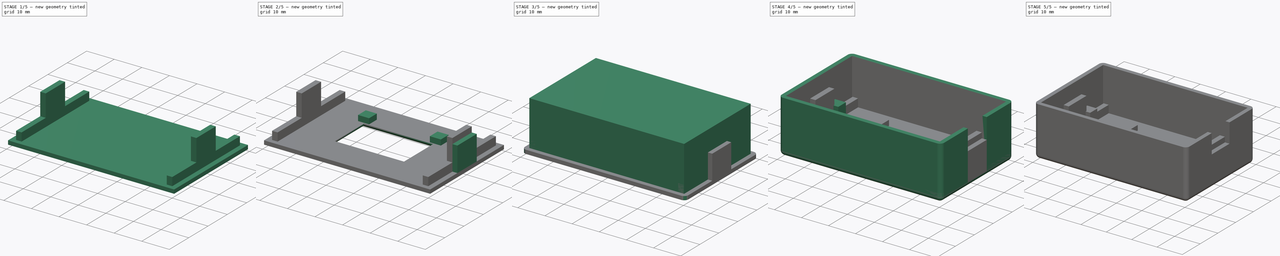
[diagram: build sequence overview — one tinted view per stage of 5, left to right]
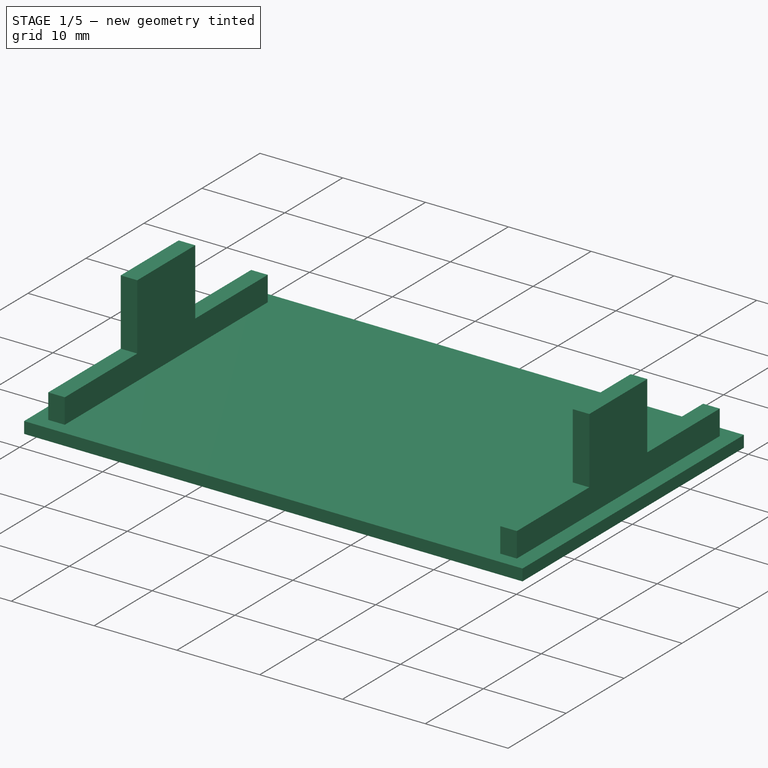
[diagram: stage 1 of 5 — iso view after this stage's code; geometry added in this stage tinted green]
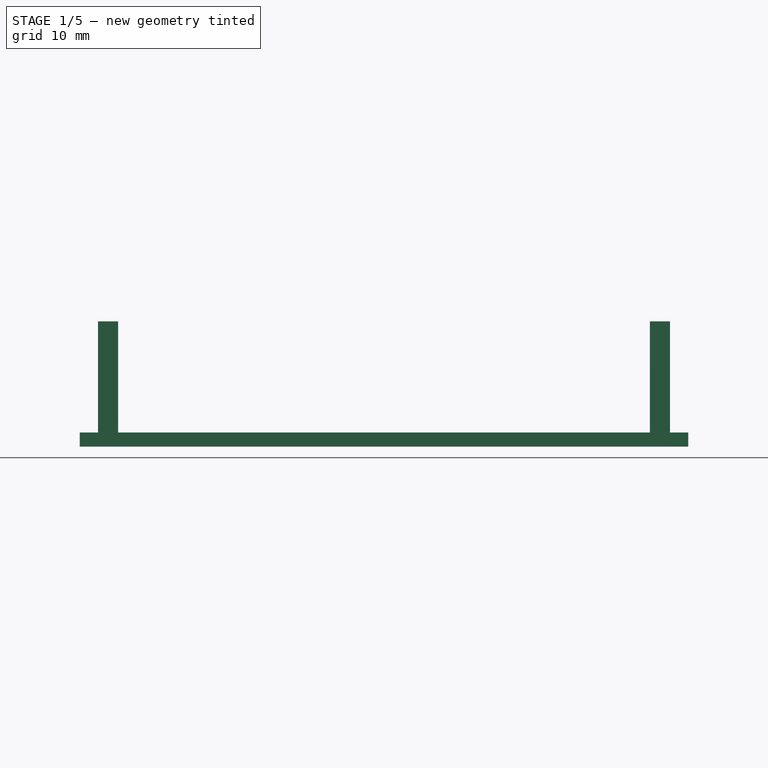
[diagram: stage 1 of 5 — front view after this stage's code; geometry added in this stage tinted green]
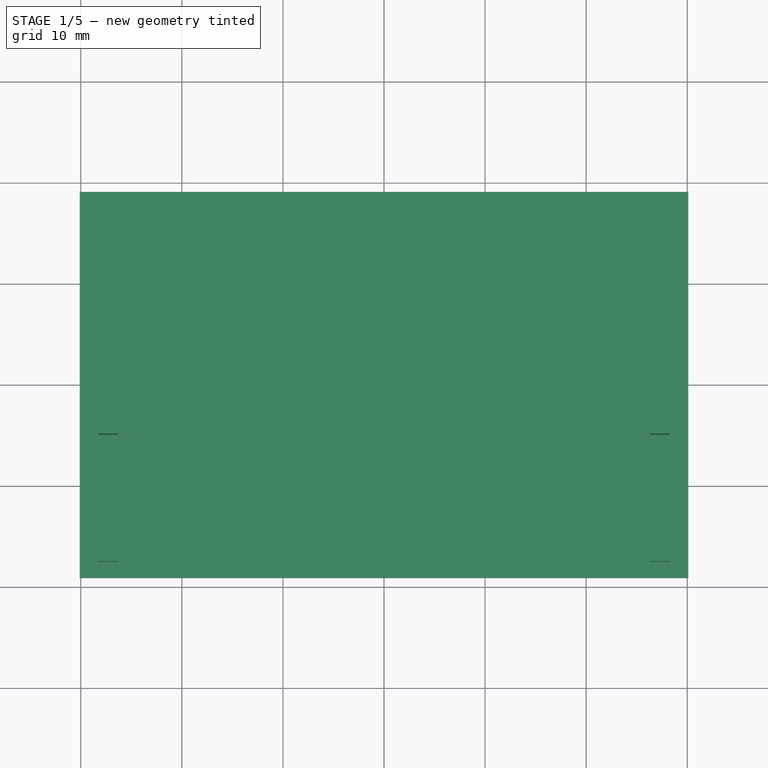
[diagram: stage 1 of 5 — top view after this stage's code; geometry added in this stage tinted green]
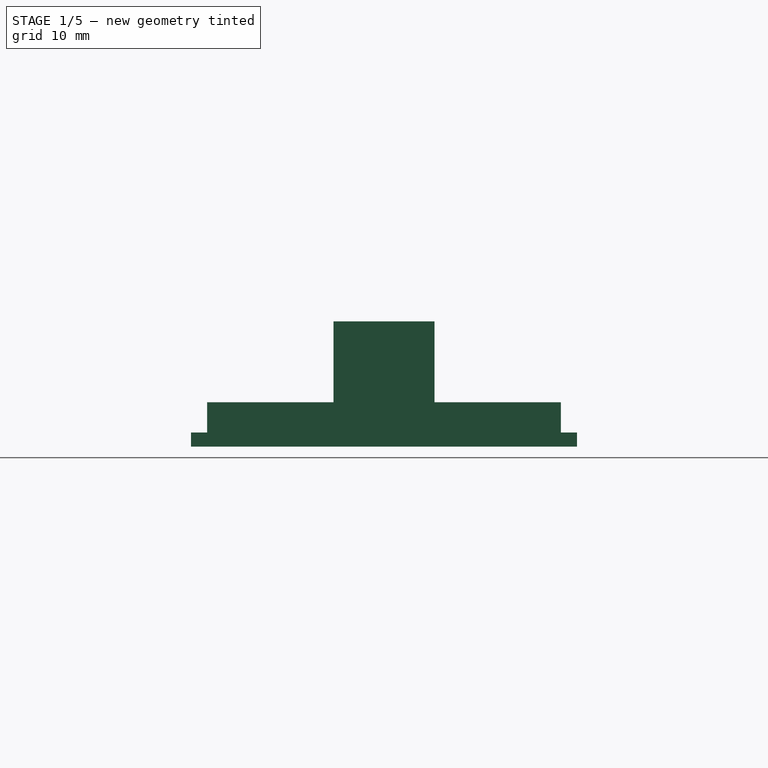
[diagram: stage 1 of 5 — right view after this stage's code; geometry added in this stage tinted green]
FCSTD DOCUMENT  (FreeCAD 0.18.3R)
Label: CajaTermometro
License: All rights reserved
LicenseURL: http://en.wikipedia.org/wiki/All_rights_reserved
objects: Sketcher::SketchObject×15, PartDesign::Pad×11, PartDesign::Mirrored×6, PartDesign::Pocket×3, PartDesign::Body×2, PartDesign::Thickness×1, PartDesign::Chamfer×1, PartDesign::Hole×1, PartDesign::Fillet×1
note: 56 computed .brp shape members not serialized (recipe doc carries the construction recipe); baked Part::Feature solids carry a one-line shape summary decoded from their .brp

FEATURE [Sketcher::SketchObject] Sketch008
  MapMode = 5
  Support = -> [XY_Plane001]
  expr: Constraints[10] = Sketch.Constraints.ancho + 3.2mm
  expr: Constraints[9] = Sketch.Constraints.largo + 3.2mm
  sketch-geometry (4):
    g0: LineSegment StartX=-30.1 StartY=19.1 StartZ=0 EndX=30.1 EndY=19.1 EndZ=0
    g1: LineSegment StartX=30.1 StartY=19.1 StartZ=0 EndX=30.1 EndY=-19.1 EndZ=0
    g2: LineSegment StartX=30.1 StartY=-19.1 StartZ=0 EndX=-30.1 EndY=-19.1 EndZ=0
    g3: LineSegment StartX=-30.1 StartY=-19.1 StartZ=0 EndX=-30.1 EndY=19.1 EndZ=0
  constraints (11):
    c: Coincident(g0,g1)
    c: Coincident(g1,g2)
    c: Coincident(g2,g3)
    c: Coincident(g3,g0)
    c: Horizontal(g0)
    c: Horizontal(g2)
    c: Vertical(g1)
    c: Vertical(g3)
    c: Symmetric(g1,g0,g-1)
    c: DistanceX(g0,g0) = 60.2
    c: DistanceY(g3,g3) = 38.2
FEATURE [PartDesign::Pad] Pad005
  Length = 1.4
  Length2 = 100
  Profile = -> Sketch008
  Refine = true
  Type = 0
FEATURE [Sketcher::SketchObject] Sketch009
  ExternalGeometry = -> [Pad005]
  MapMode = 5
  Placement = pos=(0,0,1.4) rot=(0,0,1;0rad)
  Support = -> [Pad005]
  sketch-geometry (4):
    g0: LineSegment StartX=-28.3 StartY=17.5 StartZ=0 EndX=-26.3 EndY=17.5 EndZ=0
    g1: LineSegment StartX=-26.3 StartY=17.5 StartZ=0 EndX=-26.3 EndY=-17.5 EndZ=0
    g2: LineSegment StartX=-26.3 StartY=-17.5 StartZ=0 EndX=-28.3 EndY=-17.5 EndZ=0
    g3: LineSegment StartX=-28.3 StartY=-17.5 StartZ=0 EndX=-28.3 EndY=17.5 EndZ=0
  constraints (11):
    c: Coincident(g0,g1)
    c: Coincident(g1,g2)
    c: Coincident(g2,g3)
    c: Coincident(g3,g0)
    c: Horizontal(g0)
    c: Horizontal(g2)
    c: Vertical(g1)
    c: DistanceX(g0,g0) = 2
    c: DistanceY(g-3,g0) = -1.6
    c: DistanceX(g-3,g0) = 1.8
    c: Symmetric(g0,g2,g-1)
FEATURE [PartDesign::Pad] Pad006
  BaseFeature = -> Pad005
  Length = 3
  Length2 = 100
  Profile = -> Sketch009
  Refine = true
  Type = 0
FEATURE [PartDesign::Mirrored] Mirrored002
  BaseFeature = -> Pad006
  MirrorPlane = -> YZ_Plane001
  Originals = -> [Pad006]
  Refine = true
FEATURE [Sketcher::SketchObject] Sketch010
  ExternalGeometry = -> [Mirrored002]
  MapMode = 5
  Placement = pos=(0,0,4.4) rot=(0,0,1;0rad)
  Support = -> [Mirrored002]
  sketch-geometry (4):
    g0: LineSegment StartX=-28.3 StartY=5 StartZ=0 EndX=-26.3 EndY=5 EndZ=0
    g1: LineSegment StartX=-26.3 StartY=5 StartZ=0 EndX=-26.3 EndY=-5 EndZ=0
    g2: LineSegment StartX=-26.3 StartY=-5 StartZ=0 EndX=-28.3 EndY=-5 EndZ=0
    g3: LineSegment StartX=-28.3 StartY=-5 StartZ=0 EndX=-28.3 EndY=5 EndZ=0
  constraints (11):
    c: Coincident(g0,g1)
    c: Coincident(g1,g2)
    c: Coincident(g2,g3)
    c: Coincident(g3,g0)
    c: Horizontal(g0)
    c: Horizontal(g2)
    c: Vertical(g1)
    c: PointOnObject(g0,g-4)
    c: PointOnObject(g1,g-3)
    c: Symmetric(g2,g0,g-1)
    c: DistanceY(g1,g1) = 10
FEATURE [PartDesign::Pad] Pad007
  BaseFeature = -> Mirrored002
  Length = 8
  Length2 = 100
  Profile = -> Sketch010
  Refine = true
  Type = 0
FEATURE [PartDesign::Mirrored] Mirrored003
  BaseFeature = -> Pad007
  MirrorPlane = -> YZ_Plane001
  Originals = -> [Pad007]
  Refine = true
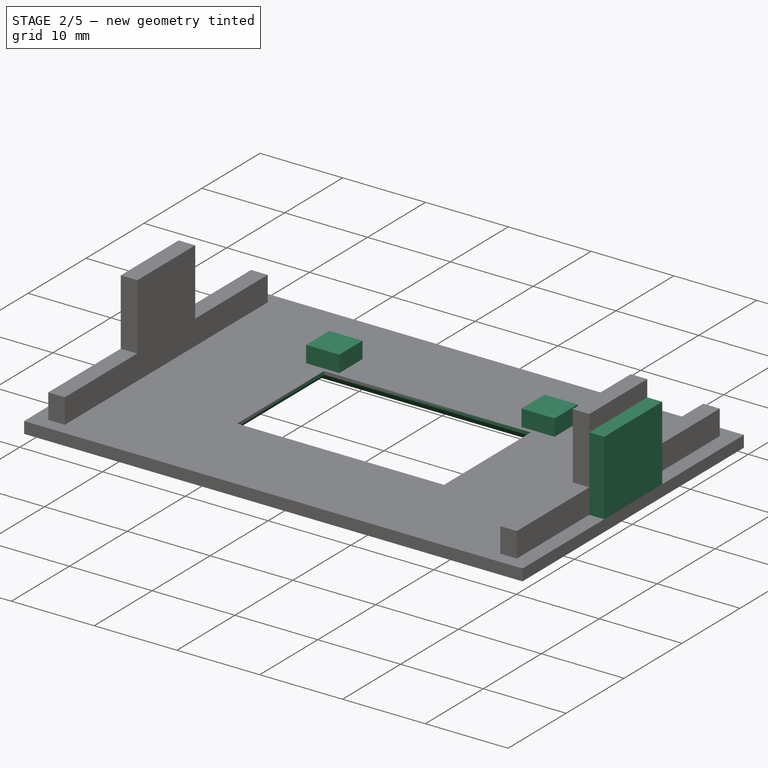
[diagram: stage 2 of 5 — iso view after this stage's code; geometry added in this stage tinted green]
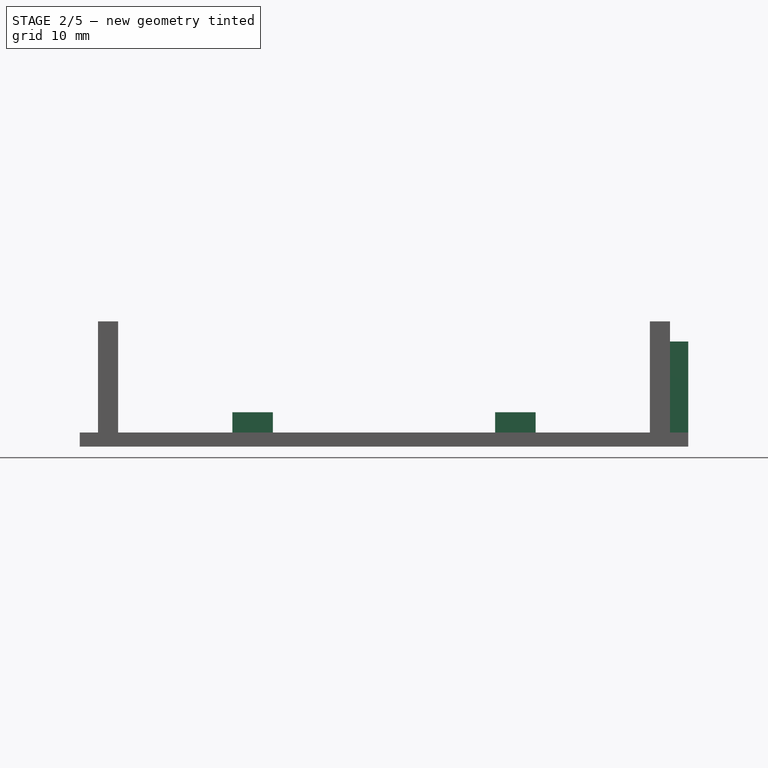
[diagram: stage 2 of 5 — front view after this stage's code; geometry added in this stage tinted green]
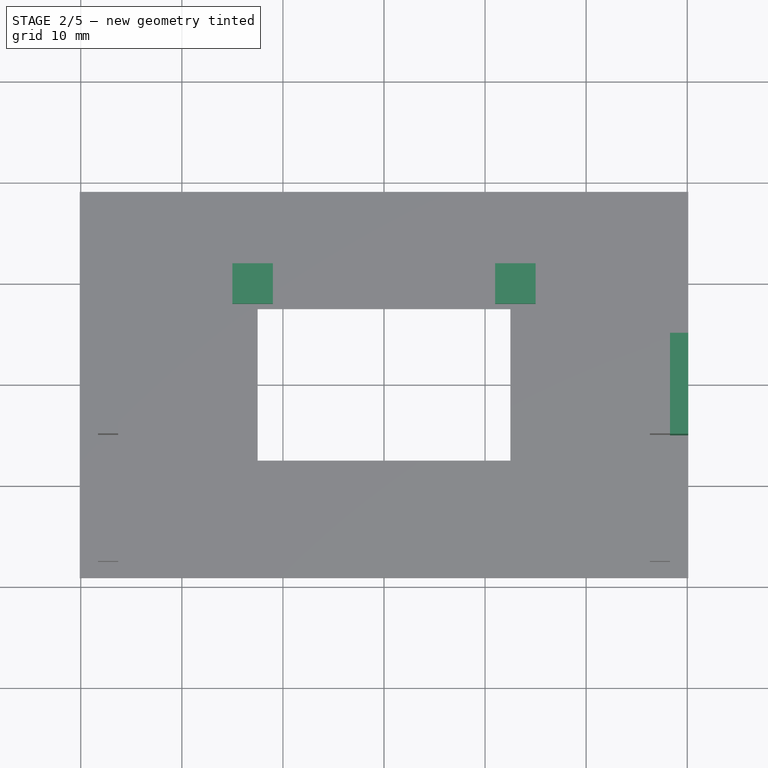
[diagram: stage 2 of 5 — top view after this stage's code; geometry added in this stage tinted green]
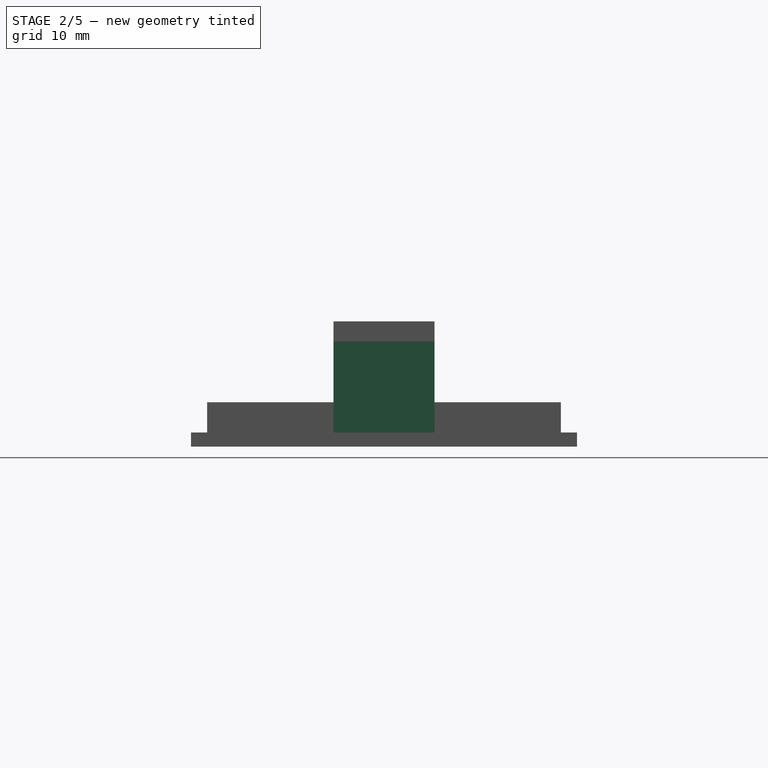
[diagram: stage 2 of 5 — right view after this stage's code; geometry added in this stage tinted green]
FEATURE [Sketcher::SketchObject] Sketch011
  ExternalGeometry = -> [Mirrored003]
  MapMode = 5
  Placement = pos=(28.3,-5.6e-15,6.8e-15) rot=(0.57735,0.57735,0.57735;2.0944rad)
  Support = -> [Mirrored003]
  sketch-geometry (4):
    g0: LineSegment StartX=-5 StartY=10.4 StartZ=0 EndX=5 EndY=10.4 EndZ=0
    g1: LineSegment StartX=5 StartY=10.4 StartZ=0 EndX=5 EndY=1.4 EndZ=0
    g2: LineSegment StartX=5 StartY=1.4 StartZ=0 EndX=-5 EndY=1.4 EndZ=0
    g3: LineSegment StartX=-5 StartY=1.4 StartZ=0 EndX=-5 EndY=10.4 EndZ=0
  constraints (11):
    c: Coincident(g0,g1)
    c: Coincident(g1,g2)
    c: Coincident(g2,g3)
    c: Coincident(g3,g0)
    c: Horizontal(g2)
    c: Vertical(g1)
    c: Vertical(g3)
    c: PointOnObject(g1,g-4)
    c: Symmetric(g0,g0,g-2)
    c: DistanceX(g0,g-3) = 0
    c: DistanceY(g0,g-3) = 2
FEATURE [PartDesign::Pad] Pad008
  BaseFeature = -> Mirrored003
  Length = 1.8
  Length2 = 100
  Profile = -> Sketch011
  Refine = true
  Type = 0
FEATURE [Sketcher::SketchObject] Sketch012
  MapMode = 5
  Placement = pos=(0,0,0) rot=(1,0,0;3.14159rad)
  Support = -> [Pad008]
  sketch-geometry (4):
    g0: LineSegment StartX=-12.5 StartY=7.5 StartZ=0 EndX=12.5 EndY=7.5 EndZ=0
    g1: LineSegment StartX=12.5 StartY=7.5 StartZ=0 EndX=12.5 EndY=-7.5 EndZ=0
    g2: LineSegment StartX=12.5 StartY=-7.5 StartZ=0 EndX=-12.5 EndY=-7.5 EndZ=0
    g3: LineSegment StartX=-12.5 StartY=-7.5 StartZ=0 EndX=-12.5 EndY=7.5 EndZ=0
  constraints (11):
    c: Coincident(g0,g1)
    c: Coincident(g1,g2)
    c: Coincident(g2,g3)
    c: Coincident(g3,g0)
    c: Horizontal(g0)
    c: Horizontal(g2)
    c: Vertical(g1)
    c: Vertical(g3)
    c: Symmetric(g1,g0,g-1)
    c: DistanceX(g0,g0) = 25
    c: DistanceY(g3,g3) = 15
FEATURE [PartDesign::Pocket] Pocket002
  BaseFeature = -> Pad008
  Length = 1
  Length2 = 100
  Profile = -> Sketch012
  Refine = true
  Type = 1
FEATURE [PartDesign::Chamfer] Chamfer
  Base = -> Pocket002 [Edge16,Edge19,Edge18,Edge17]
  BaseFeature = -> Pocket002
  Size = 1
FEATURE [Sketcher::SketchObject] Sketch013
  ExternalGeometry = -> [Chamfer]
  MapMode = 5
  Placement = pos=(0,0,1.4) rot=(0,0,1;0rad)
  Support = -> [Chamfer]
  sketch-geometry (4):
    g0: LineSegment StartX=11 StartY=12 StartZ=0 EndX=15 EndY=12 EndZ=0
    g1: LineSegment StartX=15 StartY=12 StartZ=0 EndX=15 EndY=8 EndZ=0
    g2: LineSegment StartX=15 StartY=8 StartZ=0 EndX=11 EndY=8 EndZ=0
    g3: LineSegment StartX=11 StartY=8 StartZ=0 EndX=11 EndY=12 EndZ=0
  constraints (12):
    c: Coincident(g0,g1)
    c: Coincident(g1,g2)
    c: Coincident(g2,g3)
    c: Coincident(g3,g0)
    c: Horizontal(g0)
    c: Horizontal(g2)
    c: Vertical(g1)
    c: Vertical(g3)
    c: Equal(g2,g1)
    c: DistanceX(g2,g2) = 4
    c: DistanceX(g1,g-4) = -2.5
    c: DistanceY(g-4,g1) = 0.5
FEATURE [PartDesign::Pad] Pad009
  BaseFeature = -> Chamfer
  Length = 2
  Length2 = 100
  Profile = -> Sketch013
  Refine = true
  Type = 0
FEATURE [PartDesign::Mirrored] Mirrored004
  BaseFeature = -> Pad009
  MirrorPlane = -> YZ_Plane001
  Originals = -> [Pad009]
  Refine = true
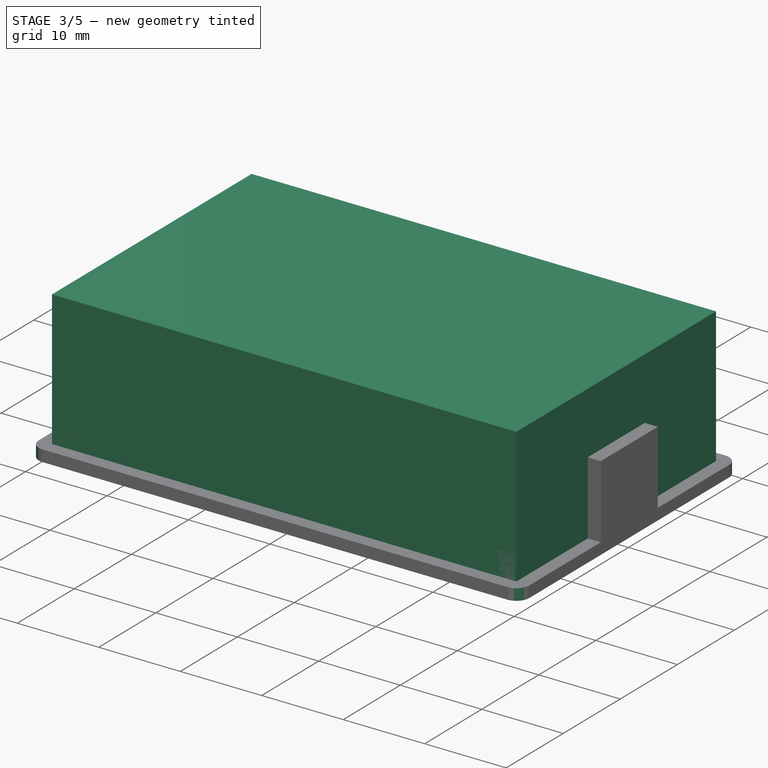
[diagram: stage 3 of 5 — iso view after this stage's code; geometry added in this stage tinted green]
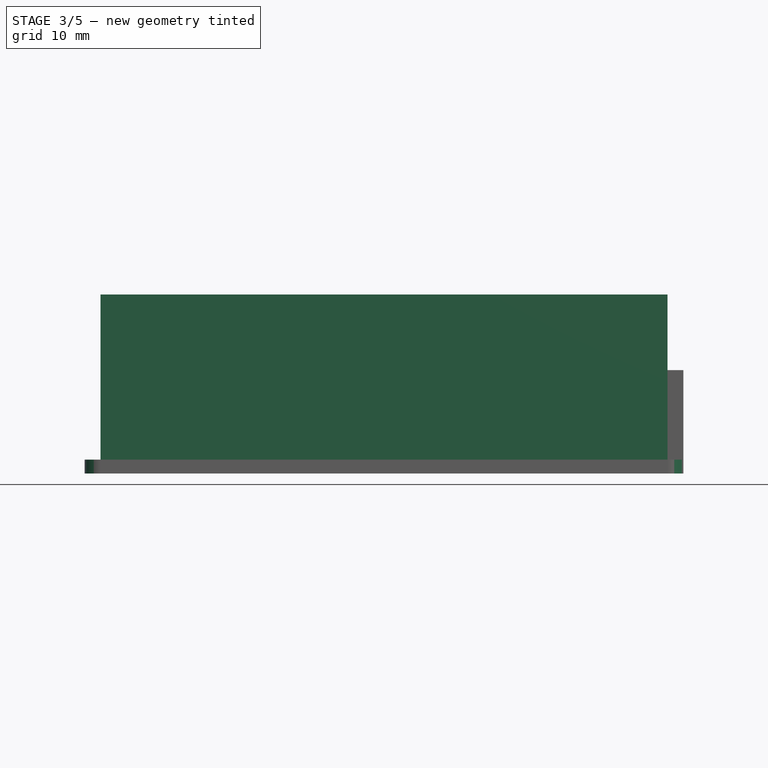
[diagram: stage 3 of 5 — front view after this stage's code; geometry added in this stage tinted green]
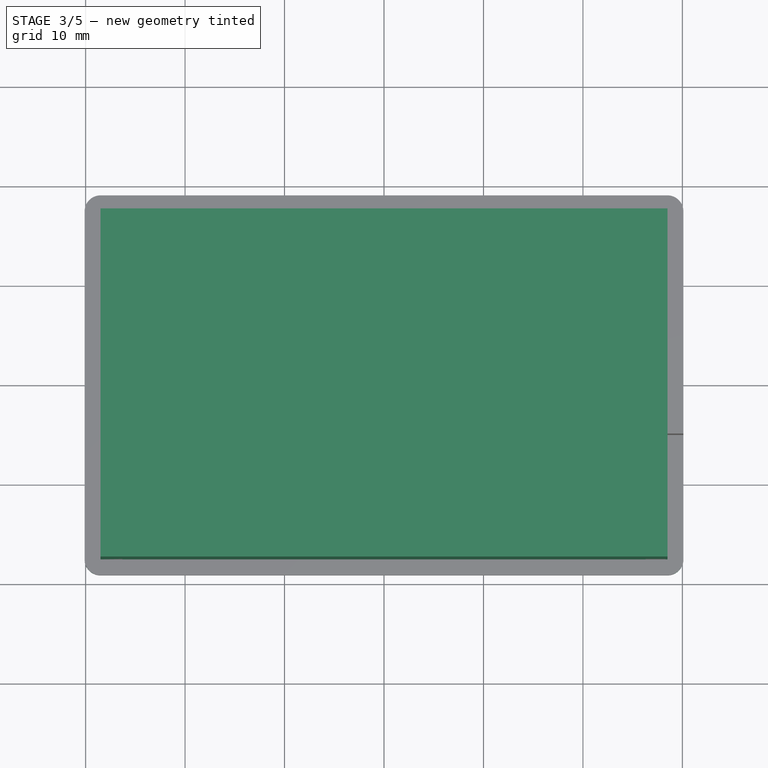
[diagram: stage 3 of 5 — top view after this stage's code; geometry added in this stage tinted green]
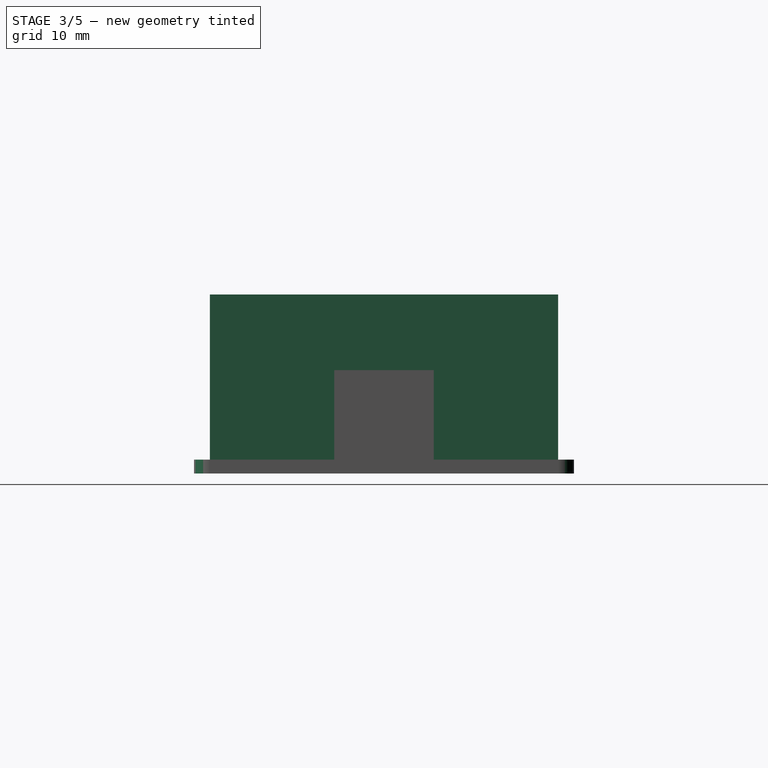
[diagram: stage 3 of 5 — right view after this stage's code; geometry added in this stage tinted green]
FEATURE [Sketcher::SketchObject] Sketch
  MapMode = 5
  Support = -> [XY_Plane]
  sketch-geometry (12):
    g0: LineSegment StartX=-28.5 StartY=17.5 StartZ=0 EndX=28.5 EndY=17.5 EndZ=0
    g1: LineSegment StartX=28.5 StartY=17.5 StartZ=0 EndX=28.5 EndY=-17.5 EndZ=0
    g2: LineSegment StartX=28.5 StartY=-17.5 StartZ=0 EndX=-28.5 EndY=-17.5 EndZ=0
    g3: LineSegment StartX=-28.5 StartY=-17.5 StartZ=0 EndX=-28.5 EndY=17.5 EndZ=0
    g4: LineSegment StartX=-15.1234 StartY=11.1686 StartZ=0 EndX=18.9317 EndY=11.1686 EndZ=0
    g5: LineSegment StartX=18.9317 StartY=11.1686 StartZ=0 EndX=18.9317 EndY=-10.1433 EndZ=0
    g6: LineSegment StartX=18.9317 StartY=-10.1433 StartZ=0 EndX=-15.1234 EndY=-10.1433 EndZ=0
    g7: LineSegment StartX=-15.1234 StartY=-10.1433 StartZ=0 EndX=-15.1234 EndY=11.1686 EndZ=0
    g8: LineSegment StartX=-15.1234 StartY=11.1686 StartZ=0 EndX=18.9317 EndY=11.1686 EndZ=0
    g9: LineSegment StartX=18.9317 StartY=11.1686 StartZ=0 EndX=18.9317 EndY=-10.1433 EndZ=0
    g10: LineSegment StartX=18.9317 StartY=-10.1433 StartZ=0 EndX=-15.1234 EndY=-10.1433 EndZ=0
    g11: LineSegment StartX=-15.1234 StartY=-10.1433 StartZ=0 EndX=-15.1234 EndY=11.1686 EndZ=0
  constraints (29):
    c: Coincident(g0,g1)
    c: Coincident(g1,g2)
    c: Coincident(g2,g3)
    c: Coincident(g3,g0)
    c: Horizontal(g0)
    c: Horizontal(g2)
    c: Vertical(g1)
    c: Vertical(g3)
    c: Symmetric(g1,g0,g-1)
    c: DistanceX(g0,g0) = 57  'largo'
    c: DistanceY(g3,g3) = 35  'ancho'
    c: Coincident(g0,g1)
    c: Coincident(g1,g2)
    c: Coincident(g2,g3)
    c: Coincident(g3,g0)
    c: Horizontal(g0)
    c: Horizontal(g2)
    c: Vertical(g1)
    c: Vertical(g3)
    c: Symmetric(g1,g0,g-1)
    c: Coincident(g0,g1)
    c: Coincident(g1,g2)
    c: Coincident(g2,g3)
    c: Coincident(g3,g0)
    c: Horizontal(g0)
    c: Horizontal(g2)
    c: Vertical(g1)
    c: Vertical(g3)
    c: Symmetric(g1,g0,g-1)
FEATURE [PartDesign::Pad] Pad
  Length = 18
  Length2 = 100
  Profile = -> Sketch
  Refine = true
  Type = 0
FEATURE [PartDesign::Body] Body  label="Base"
  Group = -> [Sketch,Pad,Thickness,Sketch001,Pocket,Sketch002,Pocket001,Sketch003,Pad001,Mirrored,Sketch004,Pad002,Mirrored001,Sketch005,Pad003,Sketch006,Pad004,Sketch015,Hole]
  Origin = -> Origin
  Tip = -> Hole
FEATURE [Sketcher::SketchObject] Sketch016
  ExternalGeometry = -> [Mirrored004]
  MapMode = 5
  Placement = pos=(0,0,1.4) rot=(0,0,1;0rad)
  Support = -> [Mirrored004]
  sketch-geometry (4):
    g0: LineSegment StartX=11 StartY=-12.5 StartZ=0 EndX=15 EndY=-12.5 EndZ=0
    g1: LineSegment StartX=15 StartY=-12.5 StartZ=0 EndX=15 EndY=-16.5 EndZ=0
    g2: LineSegment StartX=15 StartY=-16.5 StartZ=0 EndX=11 EndY=-16.5 EndZ=0
    g3: LineSegment StartX=11 StartY=-16.5 StartZ=0 EndX=11 EndY=-12.5 EndZ=0
  constraints (12):
    c: Coincident(g0,g1)
    c: Coincident(g1,g2)
    c: Coincident(g2,g3)
    c: Coincident(g3,g0)
    c: Horizontal(g0)
    c: Horizontal(g2)
    c: Vertical(g1)
    c: Vertical(g3)
    c: Equal(g1,g2)
    c: DistanceX(g0,g0) = 4
    c: DistanceY(g0,g-3) = 5
    c: DistanceX(g-3,g0) = 2.5
FEATURE [PartDesign::Pad] Pad010
  BaseFeature = -> Mirrored004
  Length = 2
  Length2 = 100
  Profile = -> Sketch016
  Refine = true
  Type = 0
FEATURE [PartDesign::Mirrored] Mirrored005
  BaseFeature = -> Pad010
  MirrorPlane = -> YZ_Plane001
  Originals = -> [Pad010]
  Refine = true
FEATURE [PartDesign::Fillet] Fillet
  Base = -> Mirrored005 [Edge20,Edge27,Edge17,Edge18]
  BaseFeature = -> Mirrored005
  Radius = 1.6
FEATURE [PartDesign::Body] Body001  label="Tapa"
  Group = -> [Sketch008,Pad005,Sketch009,Pad006,Mirrored002,Sketch010,Pad007,Mirrored003,Sketch011,Pad008,Sketch012,Pocket002,Chamfer,Sketch013,Pad009,Mirrored004,Sketch016,Pad010,Mirrored005,Fillet]
  Origin = -> Origin001
  Placement = pos=(0,-45,-1.6) rot=(1,0,0;0rad)
  Tip = -> Fillet
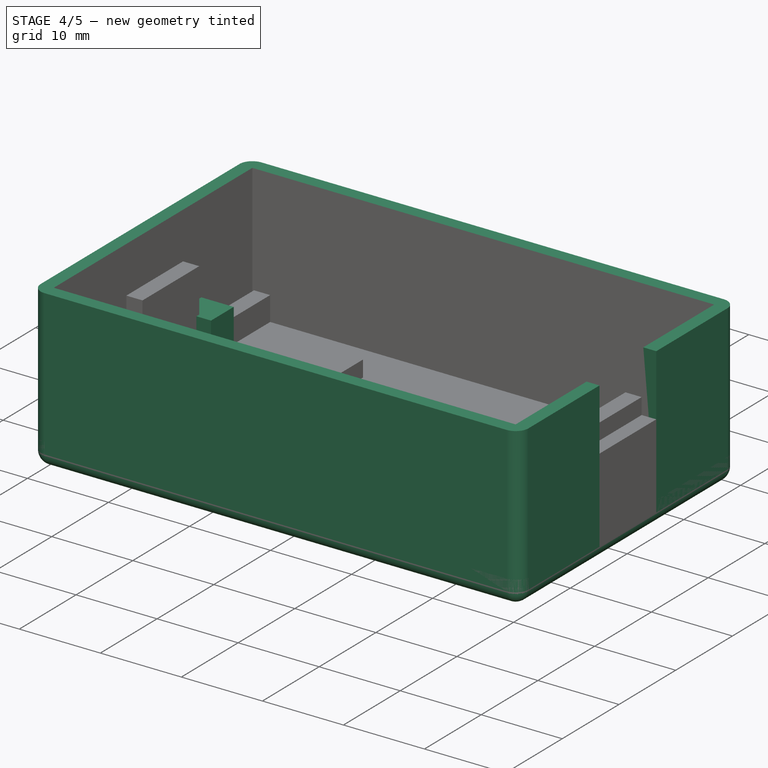
[diagram: stage 4 of 5 — iso view after this stage's code; geometry added in this stage tinted green]
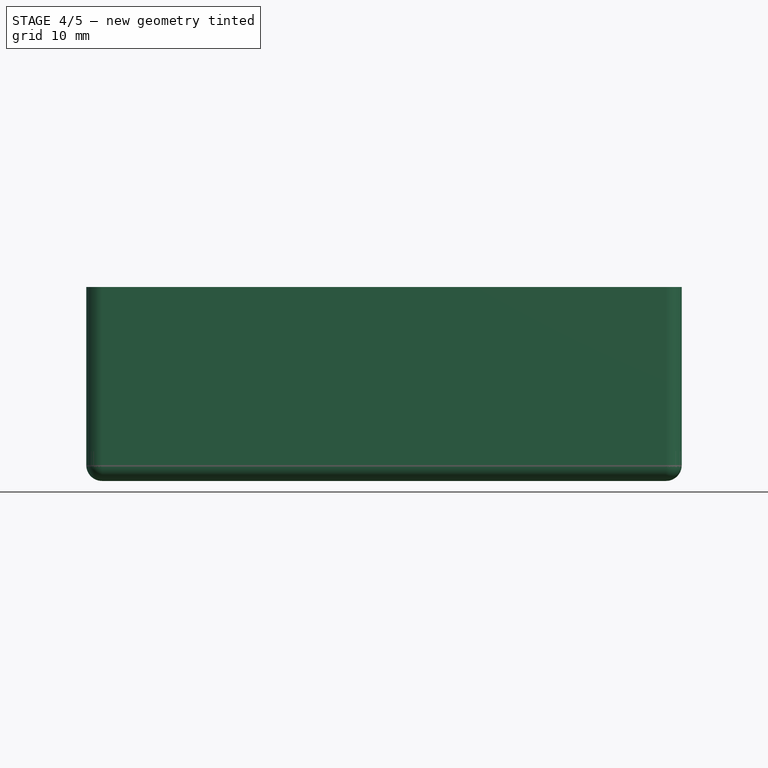
[diagram: stage 4 of 5 — front view after this stage's code; geometry added in this stage tinted green]
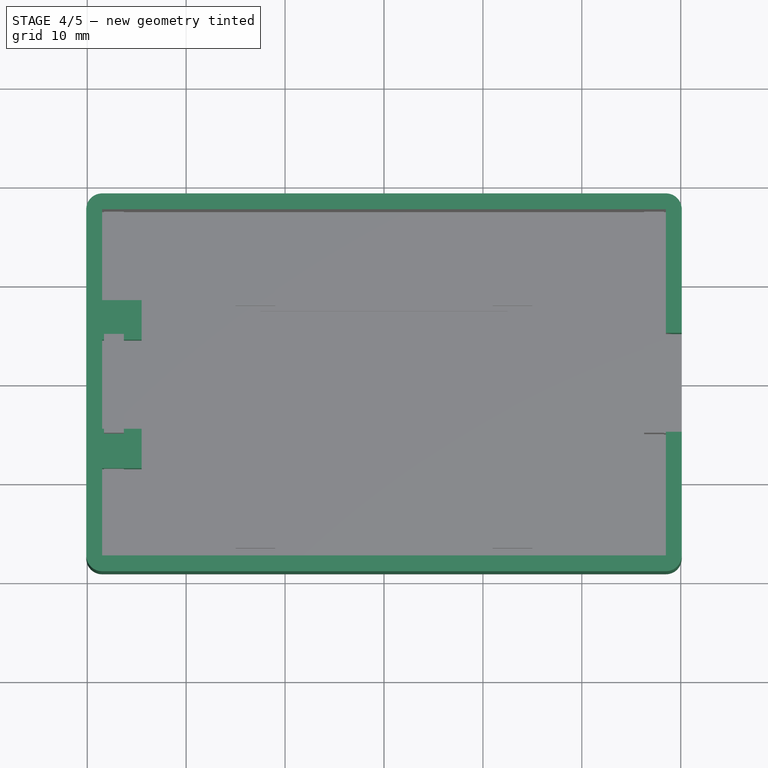
[diagram: stage 4 of 5 — top view after this stage's code; geometry added in this stage tinted green]
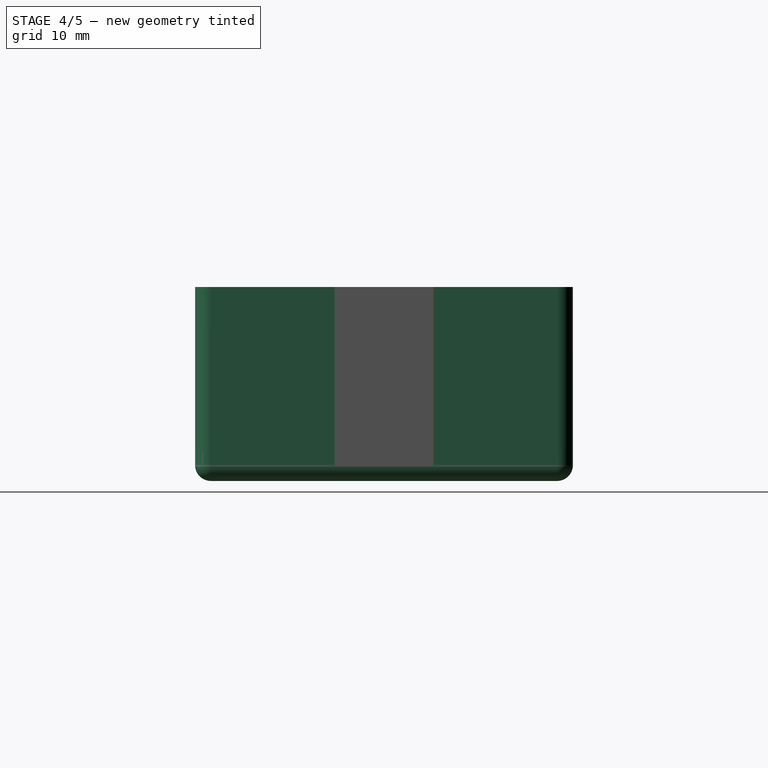
[diagram: stage 4 of 5 — right view after this stage's code; geometry added in this stage tinted green]
FEATURE [PartDesign::Thickness] Thickness
  Base = -> Pad [Face6]
  BaseFeature = -> Pad
  Join = 0
  Mode = 0
  Value = 1.6
FEATURE [Sketcher::SketchObject] Sketch001
  ExternalGeometry = -> [Thickness]
  MapMode = 5
  Placement = pos=(30.1,0,0) rot=(0.57735,0.57735,0.57735;2.0944rad)
  Support = -> [Thickness]
  sketch-geometry (4):
    g0: LineSegment StartX=-5 StartY=18 StartZ=0 EndX=5 EndY=18 EndZ=0
    g1: LineSegment StartX=5 StartY=18 StartZ=0 EndX=5 EndY=0 EndZ=0
    g2: LineSegment StartX=5 StartY=0 StartZ=0 EndX=-5 EndY=2e-16 EndZ=0
    g3: LineSegment StartX=-5 StartY=2e-16 StartZ=0 EndX=-5 EndY=18 EndZ=0
  constraints (11):
    c: Coincident(g0,g1)
    c: Coincident(g1,g2)
    c: Coincident(g2,g3)
    c: Coincident(g3,g0)
    c: Horizontal(g0)
    c: Vertical(g1)
    c: Vertical(g3)
    c: PointOnObject(g0,g-3)
    c: Symmetric(g2,g1,g-2)
    c: DistanceY(g3,g3) = 18
    c: DistanceX(g2,g2) = 10
FEATURE [PartDesign::Pocket] Pocket
  BaseFeature = -> Thickness
  Length = 2
  Length2 = 100
  Profile = -> Sketch001
  Refine = true
  Type = 0
FEATURE [Sketcher::SketchObject] Sketch002
  ExternalGeometry = -> [Pocket]
  MapMode = 5
  Placement = pos=(-28.5,0,0) rot=(0.57735,0.57735,0.57735;2.0944rad)
  Support = -> [Pocket]
  sketch-geometry (4):
    g0: LineSegment StartX=-4.5 StartY=2 StartZ=0 EndX=4.5 EndY=2 EndZ=0
    g1: LineSegment StartX=4.5 StartY=2 StartZ=0 EndX=4.5 EndY=0 EndZ=0
    g2: LineSegment StartX=4.5 StartY=0 StartZ=0 EndX=-4.5 EndY=0 EndZ=0
    g3: LineSegment StartX=-4.5 StartY=0 StartZ=0 EndX=-4.5 EndY=2 EndZ=0
  constraints (11):
    c: Coincident(g0,g1)
    c: Coincident(g1,g2)
    c: Coincident(g2,g3)
    c: Coincident(g3,g0)
    c: Horizontal(g0)
    c: Vertical(g1)
    c: Vertical(g3)
    c: PointOnObject(g1,g-3)
    c: DistanceY(g1,g1) = 2
    c: DistanceX(g0,g0) = 9
    c: Symmetric(g2,g1,g-2)
FEATURE [PartDesign::Pocket] Pocket001
  BaseFeature = -> Pocket
  Length = 2
  Length2 = 100
  Profile = -> Sketch002
  Refine = true
  Type = 0
FEATURE [Sketcher::SketchObject] Sketch003
  ExternalGeometry = -> [Pocket001]
  MapMode = 5
  Support = -> [Pocket001]
  sketch-geometry (4):
    g0: LineSegment StartX=-28.5 StartY=8.5 StartZ=0 EndX=-24.5 EndY=8.5 EndZ=0
    g1: LineSegment StartX=-24.5 StartY=8.5 StartZ=0 EndX=-24.5 EndY=4.5 EndZ=0
    g2: LineSegment StartX=-24.5 StartY=4.5 StartZ=0 EndX=-28.5 EndY=4.5 EndZ=0
    g3: LineSegment StartX=-28.5 StartY=4.5 StartZ=0 EndX=-28.5 EndY=8.5 EndZ=0
  constraints (11):
    c: Coincident(g0,g1)
    c: Coincident(g1,g2)
    c: Coincident(g2,g3)
    c: Coincident(g3,g0)
    c: Horizontal(g0)
    c: Horizontal(g2)
    c: Vertical(g1)
    c: Vertical(g3)
    c: Coincident(g2,g-3)
    c: DistanceY(g1,g1) = 4
    c: DistanceX(g2,g2) = 4
FEATURE [PartDesign::Pad] Pad001
  BaseFeature = -> Pocket001
  Length = 7
  Length2 = 100
  Profile = -> Sketch003
  Refine = true
  Type = 0
FEATURE [PartDesign::Mirrored] Mirrored
  BaseFeature = -> Pad001
  MirrorPlane = -> XZ_Plane
  Originals = -> [Pad001]
  Refine = true
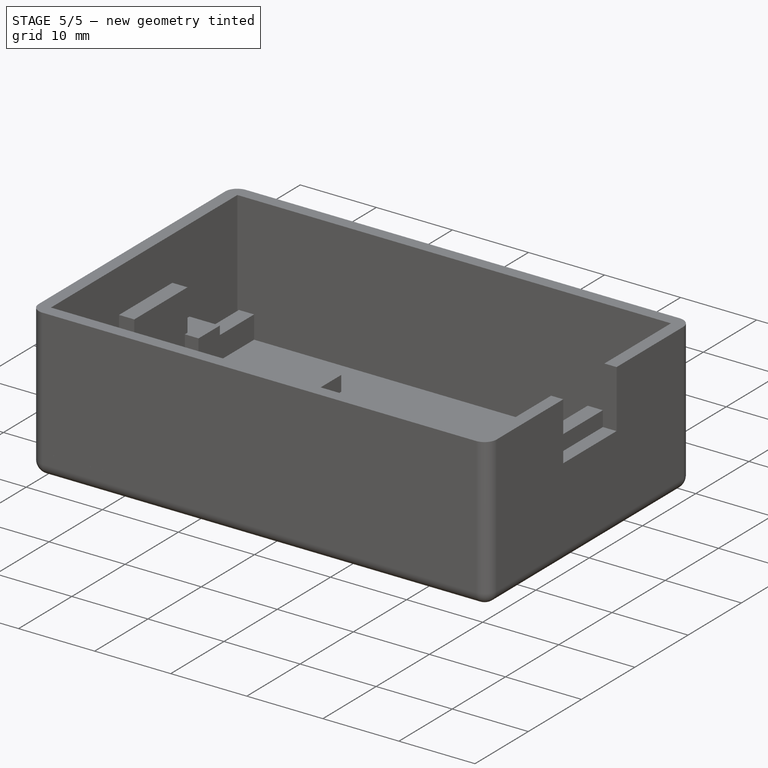
[diagram: stage 5 of 5 — iso view after this stage's code; geometry added in this stage tinted green]
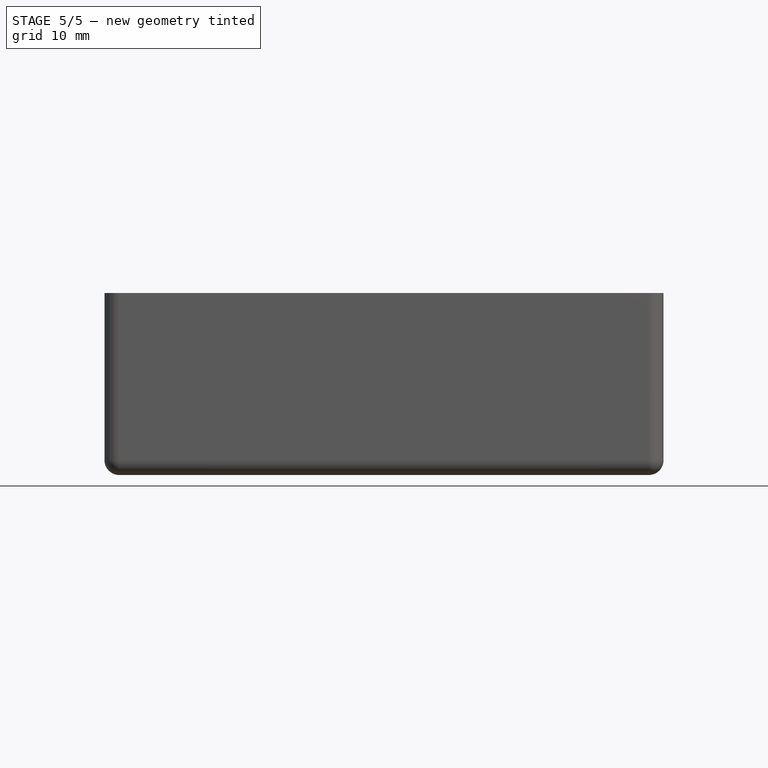
[diagram: stage 5 of 5 — front view after this stage's code; geometry added in this stage tinted green]
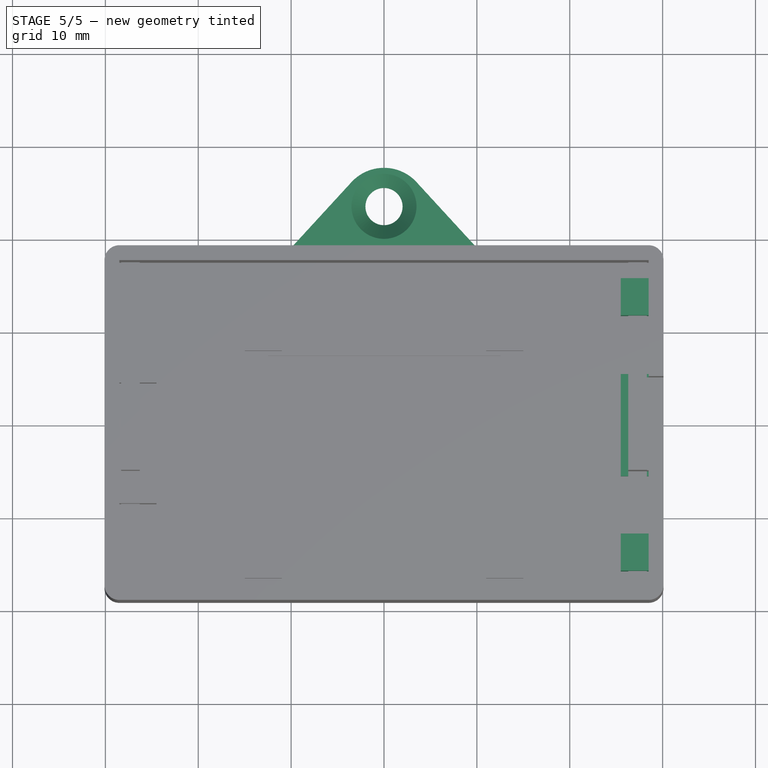
[diagram: stage 5 of 5 — top view after this stage's code; geometry added in this stage tinted green]
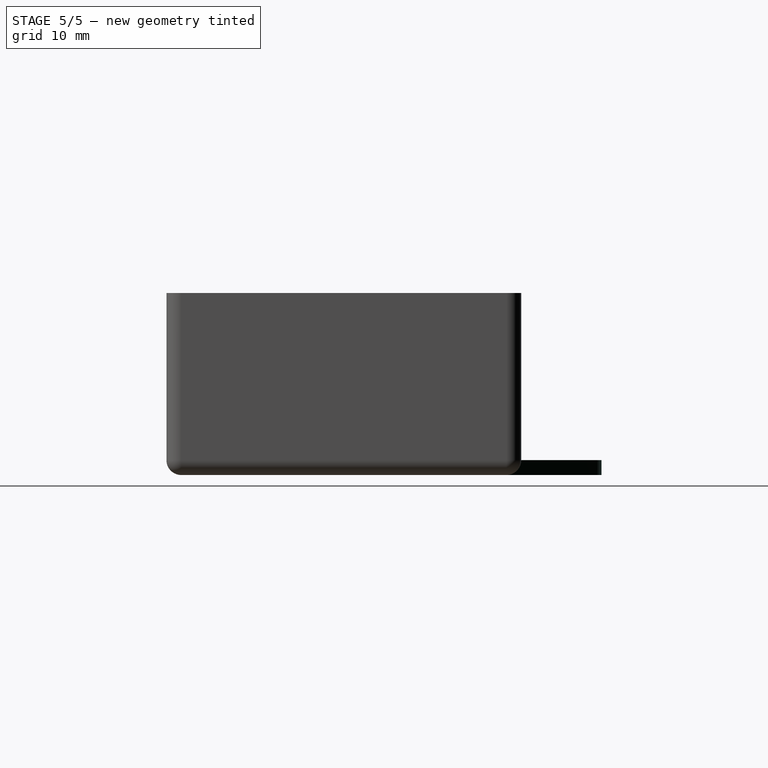
[diagram: stage 5 of 5 — right view after this stage's code; geometry added in this stage tinted green]
FEATURE [Sketcher::SketchObject] Sketch004
  ExternalGeometry = -> [Mirrored]
  MapMode = 5
  Support = -> [Mirrored]
  sketch-geometry (4):
    g0: LineSegment StartX=28.5 StartY=15.75 StartZ=0 EndX=25.5 EndY=15.75 EndZ=0
    g1: LineSegment StartX=25.5 StartY=15.75 StartZ=0 EndX=25.5 EndY=11.75 EndZ=0
    g2: LineSegment StartX=25.5 StartY=11.75 StartZ=0 EndX=28.5 EndY=11.75 EndZ=0
    g3: LineSegment StartX=28.5 StartY=11.75 StartZ=0 EndX=28.5 EndY=15.75 EndZ=0
  constraints (12):
    c: Coincident(g0,g1)
    c: Coincident(g1,g2)
    c: Coincident(g2,g3)
    c: Coincident(g3,g0)
    c: Horizontal(g0)
    c: Horizontal(g2)
    c: Vertical(g1)
    c: Vertical(g3)
    c: PointOnObject(g0,g-3)
    c: DistanceX(g0,g0) = 3
    c: DistanceY(g1,g1) = 4
    c: DistanceY(g-1,g1) = 11.75
FEATURE [PartDesign::Pad] Pad002
  BaseFeature = -> Mirrored
  Length = 7
  Length2 = 100
  Profile = -> Sketch004
  Refine = true
  Type = 0
FEATURE [PartDesign::Mirrored] Mirrored001
  BaseFeature = -> Pad002
  MirrorPlane = -> XZ_Plane
  Originals = -> [Pad002]
  Refine = true
FEATURE [Sketcher::SketchObject] Sketch005
  ExternalGeometry = -> [Mirrored001]
  MapMode = 5
  Support = -> [Mirrored001]
  sketch-geometry (4):
    g0: LineSegment StartX=25.5 StartY=5.5 StartZ=0 EndX=28.5 EndY=5.5 EndZ=0
    g1: LineSegment StartX=28.5 StartY=5.5 StartZ=0 EndX=28.5 EndY=-5.5 EndZ=0
    g2: LineSegment StartX=28.5 StartY=-5.5 StartZ=0 EndX=25.5 EndY=-5.5 EndZ=0
    g3: LineSegment StartX=25.5 StartY=-5.5 StartZ=0 EndX=25.5 EndY=5.5 EndZ=0
  constraints (11):
    c: Coincident(g0,g1)
    c: Coincident(g1,g2)
    c: Coincident(g2,g3)
    c: Coincident(g3,g0)
    c: Horizontal(g0)
    c: Horizontal(g2)
    c: Vertical(g1)
    c: DistanceY(g1,g1) = 11
    c: Symmetric(g0,g2,g-1)
    c: DistanceX(g0,g0) = 3
    c: DistanceX(g0,g-4) = 1.6
FEATURE [PartDesign::Pad] Pad003
  BaseFeature = -> Mirrored001
  Length = 3
  Length2 = 100
  Profile = -> Sketch005
  Refine = true
  Type = 0
FEATURE [Sketcher::SketchObject] Sketch006
  ExternalGeometry = -> [Pad003]
  MapMode = 5
  Support = -> [XY_Plane]
  sketch-geometry (5):
    g0: LineSegment StartX=-11.5 StartY=17.5 StartZ=0 EndX=-3.5 EndY=26.2134 EndZ=0
    g1: LineSegment [constr] StartX=-3.5 StartY=26.2134 StartZ=0 EndX=3.5 EndY=26.2134 EndZ=0
    g2: LineSegment StartX=3.5 StartY=26.2134 StartZ=0 EndX=11.5 EndY=17.5 EndZ=0
    g3: ArcOfCircle CenterX=-1.3e-15 CenterY=23 CenterZ=0 NormalX=0 NormalY=0 NormalZ=1 AngleXU=0 Radius=4.75143 StartAngle=0.742738 EndAngle=2.39885
    g4: LineSegment StartX=-11.5 StartY=17.5 StartZ=0 EndX=11.5 EndY=17.5 EndZ=0
  constraints (12):
    c: Coincident(g0,g1)
    c: Coincident(g1,g2)
    c: Symmetric(g0,g2,g-2)
    c: Symmetric(g0,g1,g-2)
    c: Coincident(g3,g2)
    c: Tangent(g3,g0) = 1.5708
    c: DistanceX(g1,g1) = 7
    c: DistanceY(g-1,g3) = 23
    c: DistanceX(g0,g2) = 23
    c: Coincident(g4,g0)
    c: Coincident(g4,g2)
    c: PointOnObject(g0,g-3)
FEATURE [PartDesign::Pad] Pad004
  BaseFeature = -> Pad003
  Length = 1.6
  Length2 = 100
  Profile = -> Sketch006
  Refine = true
  Reversed = true
  Type = 0
FEATURE [Sketcher::SketchObject] Sketch015
  MapMode = 5
  Support = -> [Pad004]
  sketch-geometry (1):
    g0: Circle CenterX=0 CenterY=23.6 CenterZ=0 NormalX=0 NormalY=0 NormalZ=1 AngleXU=0 Radius=2
  constraints (3):
    c: PointOnObject(g0,g-2)
    c: Radius(g0) = 2
    c: DistanceY(g-1,g0) = 23.6
FEATURE [PartDesign::Hole] Hole
  BaseFeature = -> Pad004
  Depth = 25
  DepthType = 1
  Diameter = 4
  DrillPoint = 1
  DrillPointAngle = 118
  HoleCutCountersinkAngle = 90
  HoleCutDepth = 0
  HoleCutDiameter = 7
  HoleCutType = 2
  ModelActualThread = false
  Profile = -> Sketch015
  Refine = true
  Tapered = false
  TaperedAngle = 90
  ThreadAngle = 0
  ThreadClass = 0
  ThreadCutOffInner = 0
  ThreadCutOffOuter = 0
  ThreadDirection = 0
  ThreadFit = 0
  ThreadPitch = 0
  ThreadSize = 0
  ThreadType = 0
  Threaded = false
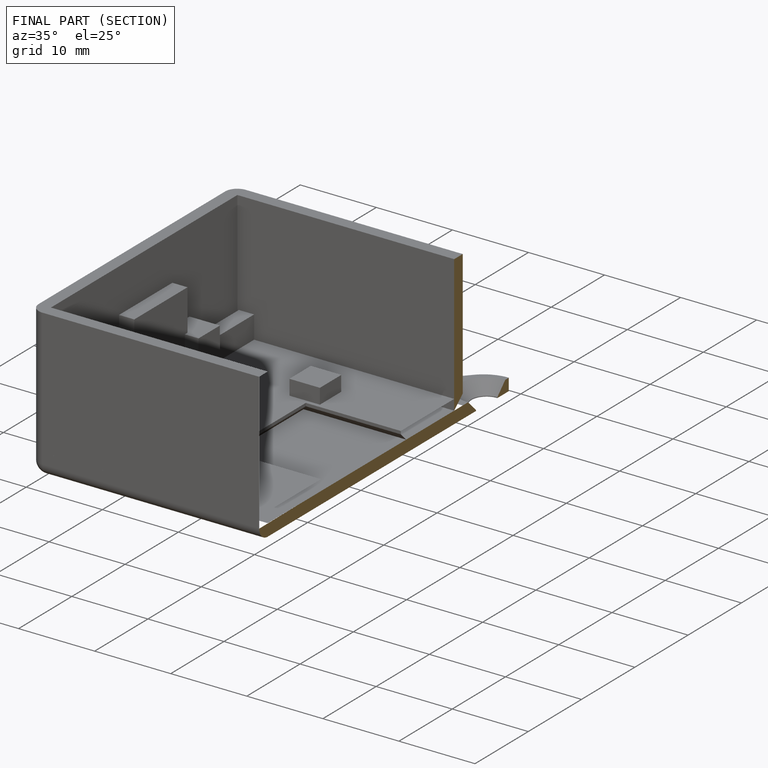
[diagram: finished part — half-section view (interior)]
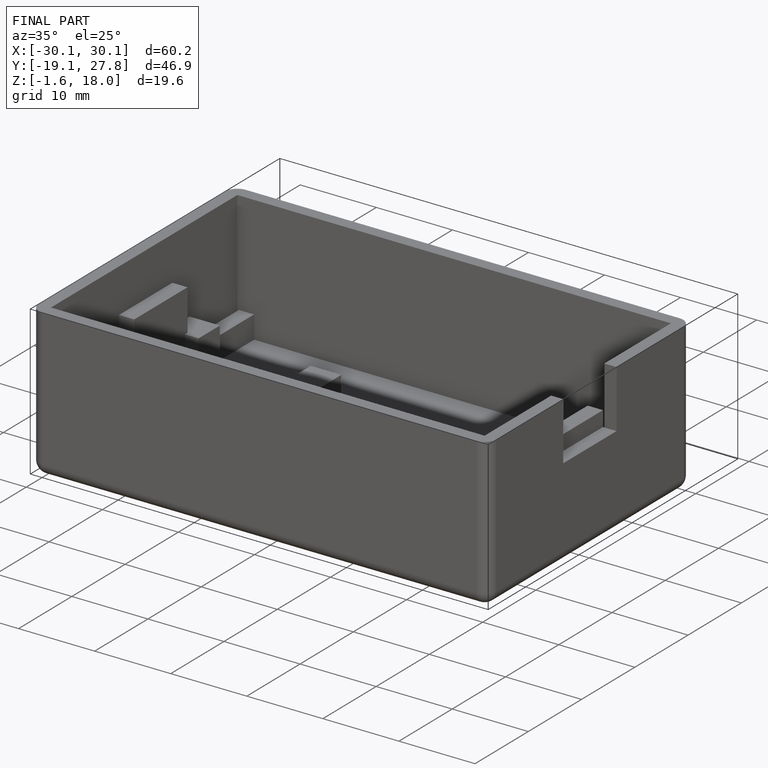
[diagram: finished part — iso view with bounding-box wireframe]
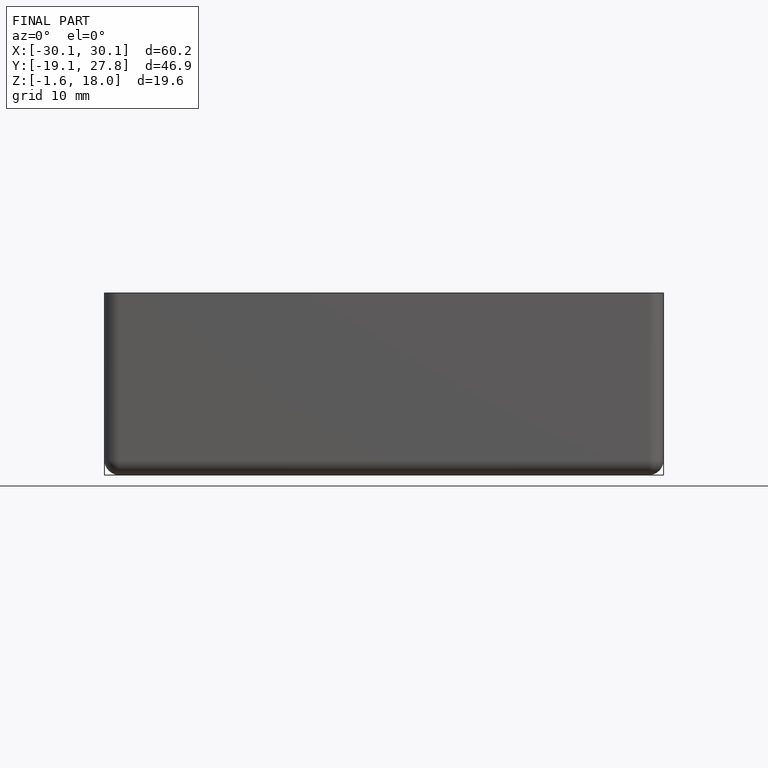
[diagram: finished part — front view with bounding-box wireframe]
